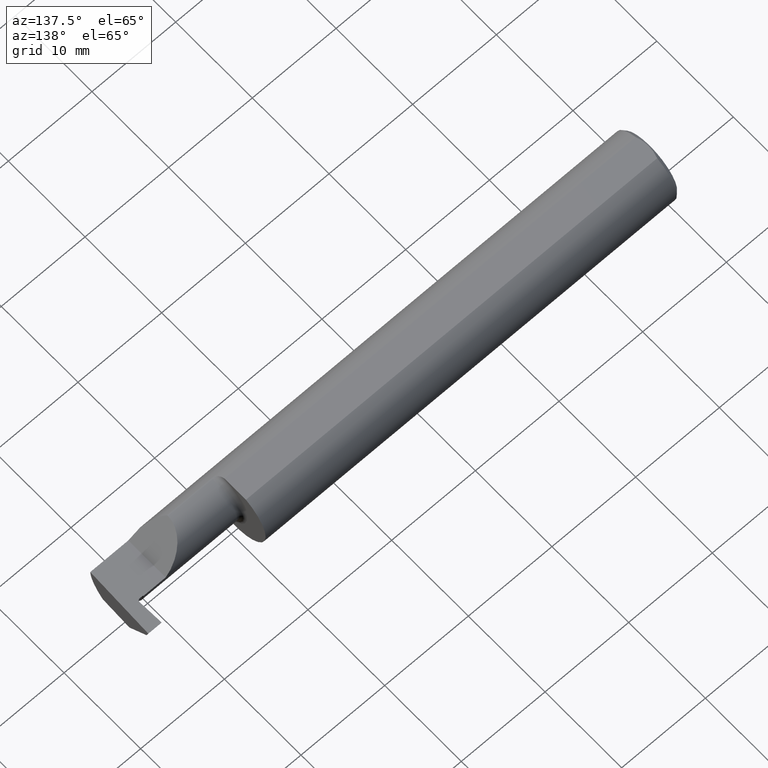
[diagram: clean part render]
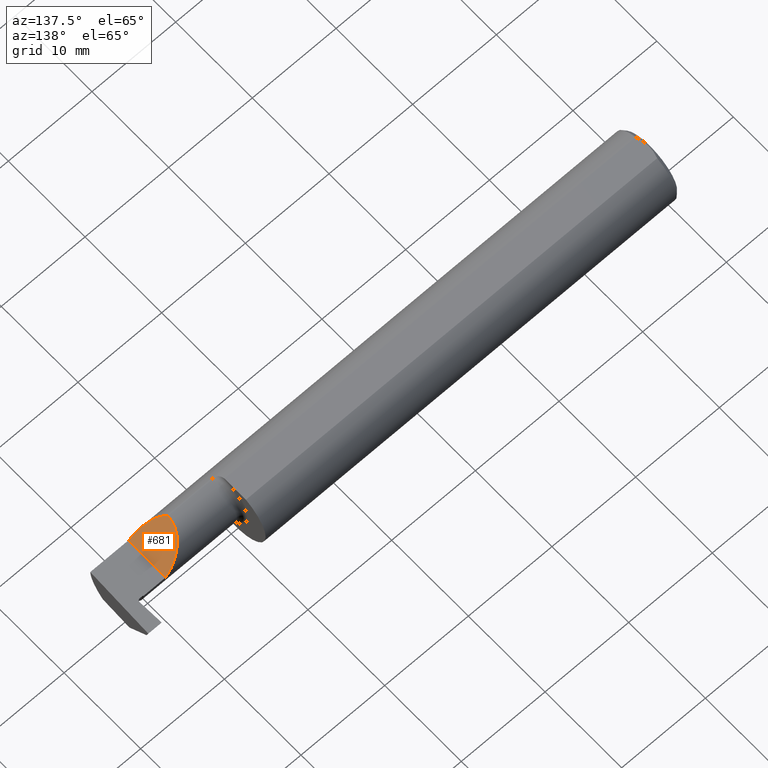
[diagram: same view with one face highlighted and labeled with its STEP entity id]
A machine part, auxiliary view. The second image highlights one B-rep face of the part: STEP entity #681.
In plain terms, the highlighted planar face has unit normal (-0.7071, 0, -0.7071).
Its self-contained STEP definition (entity closure, byte-faithful):
#9 = PLANE ( 'NONE',  #163 ) ;
#13 = CARTESIAN_POINT ( 'NONE',  ( 2.185027112864299959, -0.09210618219364782866, 0.1249728871357007748 ) ) ;
#26 = DIRECTION ( 'NONE',  ( -0.7071067811865459074, 0.000000000000000000, 0.7071067811865492381 ) ) ;
#91 = CARTESIAN_POINT ( 'NONE',  ( 2.310000000000000053, -0.1560999999999999888, 2.326828918379970872E-17 ) ) ;
#96 = CARTESIAN_POINT ( 'NONE',  ( 2.185081329771848768, -0.09360841750841755737, 0.1249186702281519651 ) ) ;
#138 = DIRECTION ( 'NONE',  ( -0.000000000000000000, 1.000000000000000000, -0.000000000000000000 ) ) ;
#163 = AXIS2_PLACEMENT_3D ( 'NONE', #427, #1041, #26 ) ;
#169 = VECTOR ( 'NONE', #138, 39.37007874015748143 ) ;
#180 = CARTESIAN_POINT ( 'NONE',  ( 2.185000000000000941, -0.09060321336276840054, 0.1250000000000000278 ) ) ;
#208 = VERTEX_POINT ( 'NONE', #640 ) ;
#247 = ORIENTED_EDGE ( 'NONE', *, *, #696, .F. ) ;
#262 = EDGE_CURVE ( 'NONE', #208, #651, #560, .T. ) ;
#273 = FACE_OUTER_BOUND ( 'NONE', #505, .T. ) ;
#309 = LINE ( 'NONE', #734, #169 ) ;
#316 = CARTESIAN_POINT ( 'NONE',  ( 2.236776695296637474, 0.03590000000000000829, 0.07322330470336313457 ) ) ;
#321 = VERTEX_POINT ( 'NONE', #91 ) ;
#402 = EDGE_CURVE ( 'NONE', #785, #208, #683, .T. ) ;
#421 = CARTESIAN_POINT ( 'NONE',  ( 2.259912409421232837, -0.1560999999999999888, 0.05008759057876772947 ) ) ;
#427 = CARTESIAN_POINT ( 'NONE',  ( 2.310000000000000053, -0.2000000000000000111, 2.326828918379970872E-17 ) ) ;
#431 = CARTESIAN_POINT ( 'NONE',  ( 2.185000000000000941, -0.08909999999999998477, 0.1250000000000000000 ) ) ;
#448 = EDGE_CURVE ( 'NONE', #321, #651, #309, .T. ) ;
#504 = CARTESIAN_POINT ( 'NONE',  ( 2.215117332916550552, -0.1336908980339254205, 0.09488266708345004241 ) ) ;
#505 = EDGE_LOOP ( 'NONE', ( #748, #247, #767, #1042 ) ) ;
#527 = CARTESIAN_POINT ( 'NONE',  ( 2.185081329771848768, -0.09360841750841755737, 0.1249186702281519651 ) ) ;
#560 =( BOUNDED_CURVE ( )  B_SPLINE_CURVE ( 3, ( #563, #1063, #316, #979 ),
 .UNSPECIFIED., .F., .F. ) 
 B_SPLINE_CURVE_WITH_KNOTS ( ( 4, 4 ),
 ( 0.000000000000000000, 1.570796326794896558 ),
 .UNSPECIFIED. ) 
 CURVE ( )  GEOMETRIC_REPRESENTATION_ITEM ( )  RATIONAL_B_SPLINE_CURVE ( ( 1.000000000000000000, 0.8047378541243649375, 0.8047378541243649375, 1.000000000000000000 ) ) 
 REPRESENTATION_ITEM ( '' )  );
#563 = CARTESIAN_POINT ( 'NONE',  ( 2.185000000000000941, -0.08909999999999998477, 0.1250000000000000000 ) ) ;
#640 = CARTESIAN_POINT ( 'NONE',  ( 2.185000000000000941, -0.08909999999999998477, 0.1250000000000000000 ) ) ;
#651 = VERTEX_POINT ( 'NONE', #1028 ) ;
#681 = ADVANCED_FACE ( 'NONE', ( #273 ), #9, .F. ) ;
#683 =( BOUNDED_CURVE ( )  B_SPLINE_CURVE ( 3, ( #96, #13, #180, #431 ),
 .UNSPECIFIED., .F., .F. ) 
 B_SPLINE_CURVE_WITH_KNOTS ( ( 4, 4 ),
 ( 6.247110142813122380, 6.283185307179586232 ),
 .UNSPECIFIED. ) 
 CURVE ( )  GEOMETRIC_REPRESENTATION_ITEM ( )  RATIONAL_B_SPLINE_CURVE ( ( 1.000000000000000000, 0.9998915514833921492, 0.9998915514833921492, 1.000000000000000000 ) ) 
 REPRESENTATION_ITEM ( '' )  );
#696 = EDGE_CURVE ( 'NONE', #321, #785, #1025, .T. ) ;
#734 = CARTESIAN_POINT ( 'NONE',  ( 2.310000000000000053, -0.2000000000000000111, 2.326828918379970872E-17 ) ) ;
#748 = ORIENTED_EDGE ( 'NONE', *, *, #402, .F. ) ;
#767 = ORIENTED_EDGE ( 'NONE', *, *, #448, .T. ) ;
#771 = CARTESIAN_POINT ( 'NONE',  ( 2.310000000000000053, -0.1560999999999999888, 2.326828918379970872E-17 ) ) ;
#785 = VERTEX_POINT ( 'NONE', #527 ) ;
#949 = CARTESIAN_POINT ( 'NONE',  ( 2.185081329771848768, -0.09360841750841755737, 0.1249186702281519651 ) ) ;
#979 = CARTESIAN_POINT ( 'NONE',  ( 2.310000000000000053, 0.03589999999999998748, 2.326828918379970872E-17 ) ) ;
#1025 =( BOUNDED_CURVE ( )  B_SPLINE_CURVE ( 3, ( #771, #421, #504, #949 ),
 .UNSPECIFIED., .F., .T. ) 
 B_SPLINE_CURVE_WITH_KNOTS ( ( 4, 4 ),
 ( 4.712388980384689674, 5.640097190903853530 ),
 .UNSPECIFIED. ) 
 CURVE ( )  GEOMETRIC_REPRESENTATION_ITEM ( )  RATIONAL_B_SPLINE_CURVE ( ( 1.000000000000000000, 0.9295565493311498395, 0.9295565493311498395, 1.000000000000000000 ) ) 
 REPRESENTATION_ITEM ( '' )  );
#1028 = CARTESIAN_POINT ( 'NONE',  ( 2.310000000000000053, 0.03589999999999998748, 2.326828918379970872E-17 ) ) ;
#1041 = DIRECTION ( 'NONE',  ( -0.7071067811865492381, 0.000000000000000000, -0.7071067811865459074 ) ) ;
#1042 = ORIENTED_EDGE ( 'NONE', *, *, #262, .F. ) ;
#1063 = CARTESIAN_POINT ( 'NONE',  ( 2.185000000000000941, -0.01587669529663685714, 0.1250000000000000278 ) ) ;